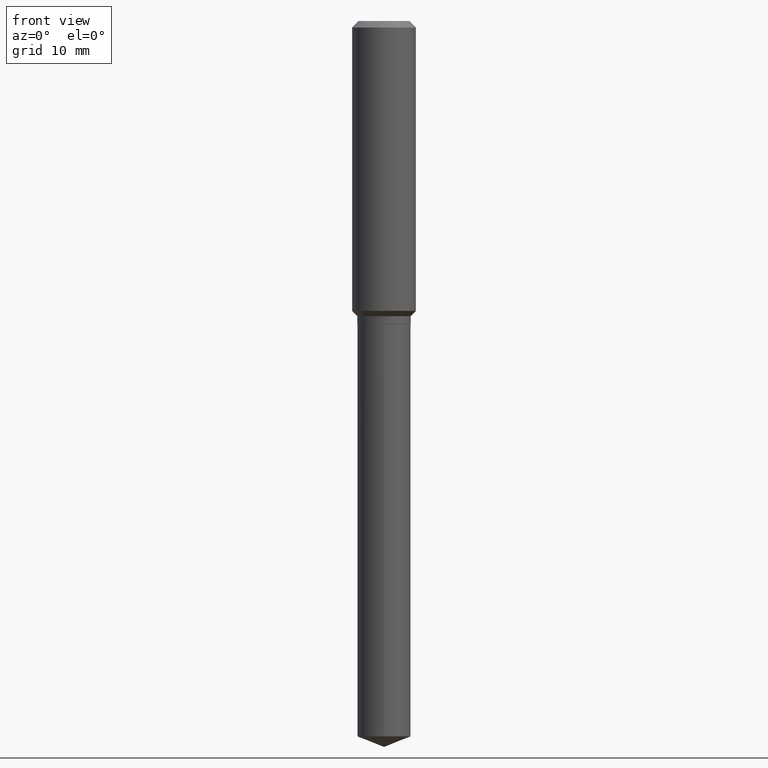
[diagram: clean part render]
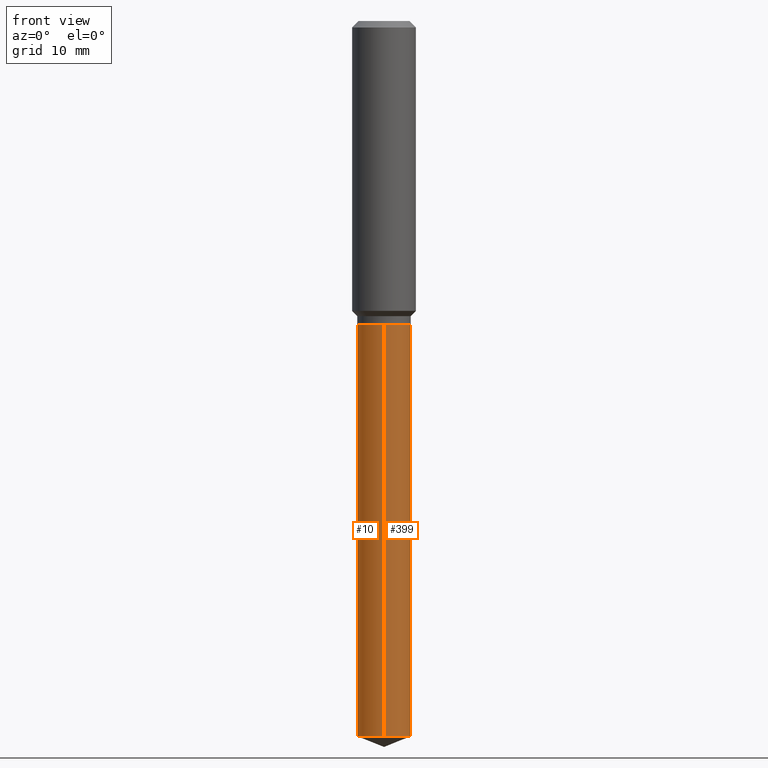
[diagram: same view with one multi-face feature highlighted, each face labeled with its STEP entity id]
A machine part, front view. The highlighted faces form ONE feature: a constant-radius fillet chain: 2 tangent blend faces with common blend radius 3.3503 mm. The faces share edges in the B-rep.
Their STEP definitions:
[1] entity #399 (Cylinder):
#3 = CARTESIAN_POINT ( 'NONE',  ( 9.372058684676586479E-16, 0.1318999999999947437, -1.496400000000000841 ) ) ;
#12 = AXIS2_PLACEMENT_3D ( 'NONE', #487, #227, #341 ) ;
#13 = CIRCLE ( 'NONE', #429, 0.1318999999999999895 ) ;
#14 = LINE ( 'NONE', #290, #64 ) ;
#17 = DIRECTION ( 'NONE',  ( -2.445425864037539637E-29, 3.491542834442619495E-15, 1.000000000000000000 ) ) ;
#55 = VECTOR ( 'NONE', #380, 39.37007874015748143 ) ;
#62 = ORIENTED_EDGE ( 'NONE', *, *, #363, .F. ) ;
#64 = VECTOR ( 'NONE', #369, 39.37007874015748143 ) ;
#69 = VERTEX_POINT ( 'NONE', #177 ) ;
#76 = VERTEX_POINT ( 'NONE', #485 ) ;
#96 = AXIS2_PLACEMENT_3D ( 'NONE', #266, #427, #421 ) ;
#123 = CARTESIAN_POINT ( 'NONE',  ( -9.210527771867316403E-16, -0.1319000000000122574, -3.531043208266388955 ) ) ;
#124 = FACE_OUTER_BOUND ( 'NONE', #244, .T. ) ;
#140 = ORIENTED_EDGE ( 'NONE', *, *, #459, .F. ) ;
#146 = CIRCLE ( 'NONE', #12, 0.1318999999999999895 ) ;
#147 = EDGE_CURVE ( 'NONE', #176, #69, #146, .T. ) ;
#155 = CYLINDRICAL_SURFACE ( 'NONE', #96, 0.1318999999999999895 ) ;
#165 = LINE ( 'NONE', #336, #55 ) ;
#176 = VERTEX_POINT ( 'NONE', #123 ) ;
#177 = CARTESIAN_POINT ( 'NONE',  ( 9.372058684676578590E-16, 0.1318999999999876105, -3.531043208266390288 ) ) ;
#190 = EDGE_CURVE ( 'NONE', #69, #436, #14, .T. ) ;
#204 = ORIENTED_EDGE ( 'NONE', *, *, #147, .T. ) ;
#227 = DIRECTION ( 'NONE',  ( -2.445425864037539637E-29, 3.491542834442619495E-15, 1.000000000000000000 ) ) ;
#243 = DIRECTION ( 'NONE',  ( -6.982962677686265922E-15, -1.000000000000000000, 4.142301734138382417E-15 ) ) ;
#244 = EDGE_LOOP ( 'NONE', ( #204, #279, #140, #62 ) ) ;
#266 = CARTESIAN_POINT ( 'NONE',  ( 3.659399521575438742E-29, -5.224652675444883351E-15, -1.496400000000000174 ) ) ;
#279 = ORIENTED_EDGE ( 'NONE', *, *, #190, .T. ) ;
#290 = CARTESIAN_POINT ( 'NONE',  ( 9.372058684676085552E-16, 0.1318999999999947437, -1.496400000000000841 ) ) ;
#318 = CARTESIAN_POINT ( 'NONE',  ( 3.659399521575438742E-29, -5.224652675444883351E-15, -1.496400000000000174 ) ) ;
#336 = CARTESIAN_POINT ( 'NONE',  ( -9.210527771867817330E-16, -0.1319000000000052075, -1.496399999999999730 ) ) ;
#341 = DIRECTION ( 'NONE',  ( -6.982962677686265922E-15, -1.000000000000000000, 4.142301734138382417E-15 ) ) ;
#363 = EDGE_CURVE ( 'NONE', #176, #76, #165, .T. ) ;
#369 = DIRECTION ( 'NONE',  ( -2.445425864037539356E-29, 3.491542834442619101E-15, 1.000000000000000000 ) ) ;
#380 = DIRECTION ( 'NONE',  ( -2.445425864037539356E-29, 3.491542834442619101E-15, 1.000000000000000000 ) ) ;
#399 = ADVANCED_FACE ( 'NONE', ( #124 ), #155, .T. ) ;
#421 = DIRECTION ( 'NONE',  ( -6.982962677686265922E-15, -1.000000000000000000, 4.142301734138382417E-15 ) ) ;
#427 = DIRECTION ( 'NONE',  ( -2.445425864037539637E-29, 3.491542834442619495E-15, 1.000000000000000000 ) ) ;
#429 = AXIS2_PLACEMENT_3D ( 'NONE', #318, #17, #243 ) ;
#436 = VERTEX_POINT ( 'NONE', #3 ) ;
#459 = EDGE_CURVE ( 'NONE', #76, #436, #13, .T. ) ;
#485 = CARTESIAN_POINT ( 'NONE',  ( -9.210527771867817330E-16, -0.1319000000000052075, -1.496399999999999730 ) ) ;
#487 = CARTESIAN_POINT ( 'NONE',  ( 8.634968647158386129E-29, -1.232869658991473909E-14, -3.531043208266389843 ) ) ;
[2] entity #10 (Cylinder):
#3 = CARTESIAN_POINT ( 'NONE',  ( 9.372058684676586479E-16, 0.1318999999999947437, -1.496400000000000841 ) ) ;
#8 = DIRECTION ( 'NONE',  ( -6.982962677686265922E-15, -1.000000000000000000, 4.142301734138382417E-15 ) ) ;
#10 = ADVANCED_FACE ( 'NONE', ( #457 ), #417, .T. ) ;
#14 = LINE ( 'NONE', #290, #64 ) ;
#45 = DIRECTION ( 'NONE',  ( -6.982962677686265922E-15, -1.000000000000000000, 4.142301734138382417E-15 ) ) ;
#55 = VECTOR ( 'NONE', #380, 39.37007874015748143 ) ;
#64 = VECTOR ( 'NONE', #369, 39.37007874015748143 ) ;
#69 = VERTEX_POINT ( 'NONE', #177 ) ;
#76 = VERTEX_POINT ( 'NONE', #485 ) ;
#82 = DIRECTION ( 'NONE',  ( -6.982962677686265922E-15, -1.000000000000000000, 4.142301734138382417E-15 ) ) ;
#84 = ORIENTED_EDGE ( 'NONE', *, *, #455, .F. ) ;
#98 = AXIS2_PLACEMENT_3D ( 'NONE', #376, #338, #45 ) ;
#107 = ORIENTED_EDGE ( 'NONE', *, *, #363, .T. ) ;
#111 = CIRCLE ( 'NONE', #310, 0.1318999999999999895 ) ;
#123 = CARTESIAN_POINT ( 'NONE',  ( -9.210527771867316403E-16, -0.1319000000000122574, -3.531043208266388955 ) ) ;
#165 = LINE ( 'NONE', #336, #55 ) ;
#176 = VERTEX_POINT ( 'NONE', #123 ) ;
#177 = CARTESIAN_POINT ( 'NONE',  ( 9.372058684676578590E-16, 0.1318999999999876105, -3.531043208266390288 ) ) ;
#179 = ORIENTED_EDGE ( 'NONE', *, *, #278, .T. ) ;
#188 = CARTESIAN_POINT ( 'NONE',  ( 3.659399521575438742E-29, -5.224652675444883351E-15, -1.496400000000000174 ) ) ;
#190 = EDGE_CURVE ( 'NONE', #69, #436, #14, .T. ) ;
#194 = DIRECTION ( 'NONE',  ( -2.445425864037539637E-29, 3.491542834442619495E-15, 1.000000000000000000 ) ) ;
#262 = DIRECTION ( 'NONE',  ( -2.445425864037539637E-29, 3.491542834442619495E-15, 1.000000000000000000 ) ) ;
#278 = EDGE_CURVE ( 'NONE', #69, #176, #111, .T. ) ;
#290 = CARTESIAN_POINT ( 'NONE',  ( 9.372058684676085552E-16, 0.1318999999999947437, -1.496400000000000841 ) ) ;
#310 = AXIS2_PLACEMENT_3D ( 'NONE', #411, #262, #82 ) ;
#317 = EDGE_LOOP ( 'NONE', ( #325, #179, #107, #84 ) ) ;
#319 = AXIS2_PLACEMENT_3D ( 'NONE', #188, #194, #8 ) ;
#325 = ORIENTED_EDGE ( 'NONE', *, *, #190, .F. ) ;
#336 = CARTESIAN_POINT ( 'NONE',  ( -9.210527771867817330E-16, -0.1319000000000052075, -1.496399999999999730 ) ) ;
#338 = DIRECTION ( 'NONE',  ( -2.445425864037539637E-29, 3.491542834442619495E-15, 1.000000000000000000 ) ) ;
#363 = EDGE_CURVE ( 'NONE', #176, #76, #165, .T. ) ;
#369 = DIRECTION ( 'NONE',  ( -2.445425864037539356E-29, 3.491542834442619101E-15, 1.000000000000000000 ) ) ;
#376 = CARTESIAN_POINT ( 'NONE',  ( 3.659399521575438742E-29, -5.224652675444883351E-15, -1.496400000000000174 ) ) ;
#380 = DIRECTION ( 'NONE',  ( -2.445425864037539356E-29, 3.491542834442619101E-15, 1.000000000000000000 ) ) ;
#411 = CARTESIAN_POINT ( 'NONE',  ( 8.634968647158386129E-29, -1.232869658991473909E-14, -3.531043208266389843 ) ) ;
#417 = CYLINDRICAL_SURFACE ( 'NONE', #319, 0.1318999999999999895 ) ;
#436 = VERTEX_POINT ( 'NONE', #3 ) ;
#455 = EDGE_CURVE ( 'NONE', #436, #76, #468, .T. ) ;
#457 = FACE_OUTER_BOUND ( 'NONE', #317, .T. ) ;
#468 = CIRCLE ( 'NONE', #98, 0.1318999999999999895 ) ;
#485 = CARTESIAN_POINT ( 'NONE',  ( -9.210527771867817330E-16, -0.1319000000000052075, -1.496399999999999730 ) ) ;